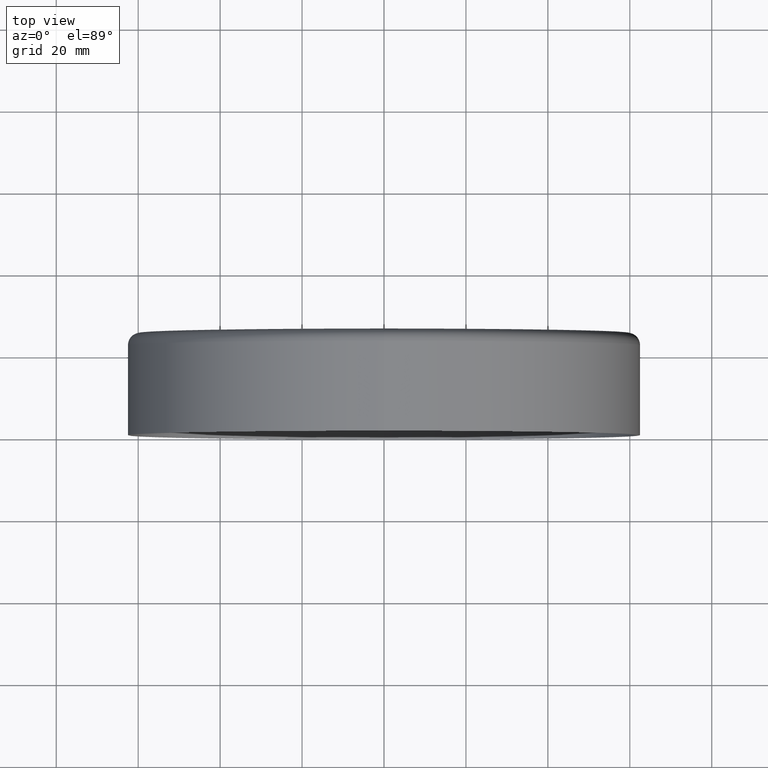
[diagram: clean part render]
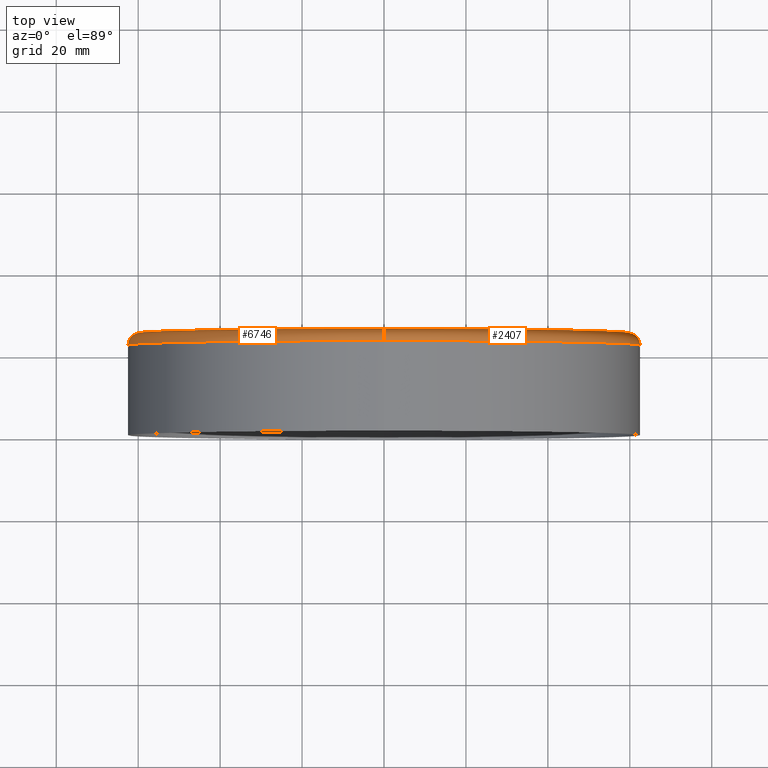
[diagram: same view with one multi-face feature highlighted, each face labeled with its STEP entity id]
A machine part, top view. The highlighted faces form ONE feature: a constant-radius fillet chain: 2 tangent blend faces with common blend radius 3 mm. The faces share edges in the B-rep.
Their STEP definitions:
[1] entity #2407 (Torus):
#180 = DIRECTION ( 'NONE',  ( -0.000000000000000000, -1.000000000000000000, -0.000000000000000000 ) ) ;
#182 = CARTESIAN_POINT ( 'NONE',  ( 0.000000000000000000, 22.00000000000000355, 0.000000000000000000 ) ) ;
#795 = VERTEX_POINT ( 'NONE', #14511 ) ;
#933 = AXIS2_PLACEMENT_3D ( 'NONE', #8736, #6529, #3802 ) ;
#1203 = EDGE_CURVE ( 'NONE', #12970, #795, #6454, .T. ) ;
#1362 = CARTESIAN_POINT ( 'NONE',  ( 0.000000000000000000, 22.00000000000000355, -62.50000000000000000 ) ) ;
#1475 = DIRECTION ( 'NONE',  ( 0.000000000000000000, 0.000000000000000000, -1.000000000000000000 ) ) ;
#2019 = EDGE_CURVE ( 'NONE', #795, #9470, #15365, .T. ) ;
#2407 = ADVANCED_FACE ( 'NONE', ( #11455 ), #12623, .T. ) ;
#2670 = AXIS2_PLACEMENT_3D ( 'NONE', #3681, #180, #1475 ) ;
#2792 = AXIS2_PLACEMENT_3D ( 'NONE', #182, #12607, #13955 ) ;
#3681 = CARTESIAN_POINT ( 'NONE',  ( 0.000000000000000000, 25.00000000000000000, 0.000000000000000000 ) ) ;
#3802 = DIRECTION ( 'NONE',  ( -1.224646799147351975E-16, 0.000000000000000000, -1.000000000000000000 ) ) ;
#4500 = CARTESIAN_POINT ( 'NONE',  ( 0.000000000000000000, 22.00000000000000355, -59.50000000000000000 ) ) ;
#4969 = DIRECTION ( 'NONE',  ( 0.000000000000000000, 0.000000000000000000, -1.000000000000000000 ) ) ;
#5425 = ORIENTED_EDGE ( 'NONE', *, *, #1203, .T. ) ;
#6398 = EDGE_CURVE ( 'NONE', #10280, #9470, #10481, .T. ) ;
#6454 = CIRCLE ( 'NONE', #2670, 59.50000000000000000 ) ;
#6529 = DIRECTION ( 'NONE',  ( 1.000000000000000000, 0.000000000000000000, -1.224646799147353207E-16 ) ) ;
#6775 = EDGE_LOOP ( 'NONE', ( #5425, #7195, #15673, #15353 ) ) ;
#7195 = ORIENTED_EDGE ( 'NONE', *, *, #2019, .T. ) ;
#8414 = AXIS2_PLACEMENT_3D ( 'NONE', #14923, #13493, #4969 ) ;
#8674 = EDGE_CURVE ( 'NONE', #12970, #10280, #12536, .T. ) ;
#8736 = CARTESIAN_POINT ( 'NONE',  ( 7.286648454926750781E-15, 22.00000000000000355, 59.50000000000000000 ) ) ;
#9157 = AXIS2_PLACEMENT_3D ( 'NONE', #4500, #14548, #13231 ) ;
#9470 = VERTEX_POINT ( 'NONE', #15351 ) ;
#10280 = VERTEX_POINT ( 'NONE', #1362 ) ;
#10481 = CIRCLE ( 'NONE', #8414, 62.50000000000000000 ) ;
#11455 = FACE_OUTER_BOUND ( 'NONE', #6775, .T. ) ;
#12536 = CIRCLE ( 'NONE', #9157, 3.000000000000002665 ) ;
#12607 = DIRECTION ( 'NONE',  ( -0.000000000000000000, -1.000000000000000000, -0.000000000000000000 ) ) ;
#12623 = TOROIDAL_SURFACE ( 'NONE', #2792, 59.50000000000000000, 3.000000000000000888 ) ;
#12970 = VERTEX_POINT ( 'NONE', #15084 ) ;
#13231 = DIRECTION ( 'NONE',  ( 0.000000000000000000, 0.000000000000000000, 1.000000000000000000 ) ) ;
#13493 = DIRECTION ( 'NONE',  ( -0.000000000000000000, -1.000000000000000000, -0.000000000000000000 ) ) ;
#13955 = DIRECTION ( 'NONE',  ( 0.000000000000000000, 0.000000000000000000, -1.000000000000000000 ) ) ;
#14511 = CARTESIAN_POINT ( 'NONE',  ( 7.470345474798853504E-15, 25.00000000000000000, 59.50000000000000000 ) ) ;
#14548 = DIRECTION ( 'NONE',  ( -1.000000000000000000, 0.000000000000000000, 0.000000000000000000 ) ) ;
#14923 = CARTESIAN_POINT ( 'NONE',  ( 0.000000000000000000, 22.00000000000000355, 0.000000000000000000 ) ) ;
#15084 = CARTESIAN_POINT ( 'NONE',  ( 0.000000000000000000, 25.00000000000000000, -59.50000000000000000 ) ) ;
#15351 = CARTESIAN_POINT ( 'NONE',  ( 7.654042494670957804E-15, 22.00000000000000355, 62.50000000000000000 ) ) ;
#15353 = ORIENTED_EDGE ( 'NONE', *, *, #8674, .F. ) ;
#15365 = CIRCLE ( 'NONE', #933, 3.000000000000002665 ) ;
#15673 = ORIENTED_EDGE ( 'NONE', *, *, #6398, .F. ) ;
[2] entity #6746 (Torus):
#256 = EDGE_CURVE ( 'NONE', #795, #12970, #1063, .T. ) ;
#623 = CARTESIAN_POINT ( 'NONE',  ( 0.000000000000000000, 22.00000000000000355, 0.000000000000000000 ) ) ;
#795 = VERTEX_POINT ( 'NONE', #14511 ) ;
#933 = AXIS2_PLACEMENT_3D ( 'NONE', #8736, #6529, #3802 ) ;
#1063 = CIRCLE ( 'NONE', #8191, 59.50000000000000000 ) ;
#1362 = CARTESIAN_POINT ( 'NONE',  ( 0.000000000000000000, 22.00000000000000355, -62.50000000000000000 ) ) ;
#2019 = EDGE_CURVE ( 'NONE', #795, #9470, #15365, .T. ) ;
#2784 = ORIENTED_EDGE ( 'NONE', *, *, #256, .T. ) ;
#3188 = DIRECTION ( 'NONE',  ( -0.000000000000000000, -1.000000000000000000, -0.000000000000000000 ) ) ;
#3802 = DIRECTION ( 'NONE',  ( -1.224646799147351975E-16, 0.000000000000000000, -1.000000000000000000 ) ) ;
#4500 = CARTESIAN_POINT ( 'NONE',  ( 0.000000000000000000, 22.00000000000000355, -59.50000000000000000 ) ) ;
#4790 = CARTESIAN_POINT ( 'NONE',  ( 0.000000000000000000, 22.00000000000000355, 0.000000000000000000 ) ) ;
#5934 = DIRECTION ( 'NONE',  ( -0.000000000000000000, -1.000000000000000000, -0.000000000000000000 ) ) ;
#6529 = DIRECTION ( 'NONE',  ( 1.000000000000000000, 0.000000000000000000, -1.224646799147353207E-16 ) ) ;
#6705 = CIRCLE ( 'NONE', #6715, 62.50000000000000000 ) ;
#6715 = AXIS2_PLACEMENT_3D ( 'NONE', #623, #3188, #11743 ) ;
#6746 = ADVANCED_FACE ( 'NONE', ( #6991 ), #10268, .T. ) ;
#6991 = FACE_OUTER_BOUND ( 'NONE', #15024, .T. ) ;
#7265 = ORIENTED_EDGE ( 'NONE', *, *, #12696, .F. ) ;
#7509 = ORIENTED_EDGE ( 'NONE', *, *, #2019, .F. ) ;
#8191 = AXIS2_PLACEMENT_3D ( 'NONE', #14370, #8212, #14316 ) ;
#8212 = DIRECTION ( 'NONE',  ( -0.000000000000000000, -1.000000000000000000, -0.000000000000000000 ) ) ;
#8674 = EDGE_CURVE ( 'NONE', #12970, #10280, #12536, .T. ) ;
#8736 = CARTESIAN_POINT ( 'NONE',  ( 7.286648454926750781E-15, 22.00000000000000355, 59.50000000000000000 ) ) ;
#9157 = AXIS2_PLACEMENT_3D ( 'NONE', #4500, #14548, #13231 ) ;
#9470 = VERTEX_POINT ( 'NONE', #15351 ) ;
#9823 = DIRECTION ( 'NONE',  ( 0.000000000000000000, 0.000000000000000000, -1.000000000000000000 ) ) ;
#9861 = AXIS2_PLACEMENT_3D ( 'NONE', #4790, #5934, #9823 ) ;
#10268 = TOROIDAL_SURFACE ( 'NONE', #9861, 59.50000000000000000, 3.000000000000000888 ) ;
#10280 = VERTEX_POINT ( 'NONE', #1362 ) ;
#11743 = DIRECTION ( 'NONE',  ( 0.000000000000000000, 0.000000000000000000, -1.000000000000000000 ) ) ;
#12536 = CIRCLE ( 'NONE', #9157, 3.000000000000002665 ) ;
#12696 = EDGE_CURVE ( 'NONE', #9470, #10280, #6705, .T. ) ;
#12970 = VERTEX_POINT ( 'NONE', #15084 ) ;
#13231 = DIRECTION ( 'NONE',  ( 0.000000000000000000, 0.000000000000000000, 1.000000000000000000 ) ) ;
#13924 = ORIENTED_EDGE ( 'NONE', *, *, #8674, .T. ) ;
#14316 = DIRECTION ( 'NONE',  ( 0.000000000000000000, 0.000000000000000000, -1.000000000000000000 ) ) ;
#14370 = CARTESIAN_POINT ( 'NONE',  ( 0.000000000000000000, 25.00000000000000000, 0.000000000000000000 ) ) ;
#14511 = CARTESIAN_POINT ( 'NONE',  ( 7.470345474798853504E-15, 25.00000000000000000, 59.50000000000000000 ) ) ;
#14548 = DIRECTION ( 'NONE',  ( -1.000000000000000000, 0.000000000000000000, 0.000000000000000000 ) ) ;
#15024 = EDGE_LOOP ( 'NONE', ( #7509, #2784, #13924, #7265 ) ) ;
#15084 = CARTESIAN_POINT ( 'NONE',  ( 0.000000000000000000, 25.00000000000000000, -59.50000000000000000 ) ) ;
#15351 = CARTESIAN_POINT ( 'NONE',  ( 7.654042494670957804E-15, 22.00000000000000355, 62.50000000000000000 ) ) ;
#15365 = CIRCLE ( 'NONE', #933, 3.000000000000002665 ) ;